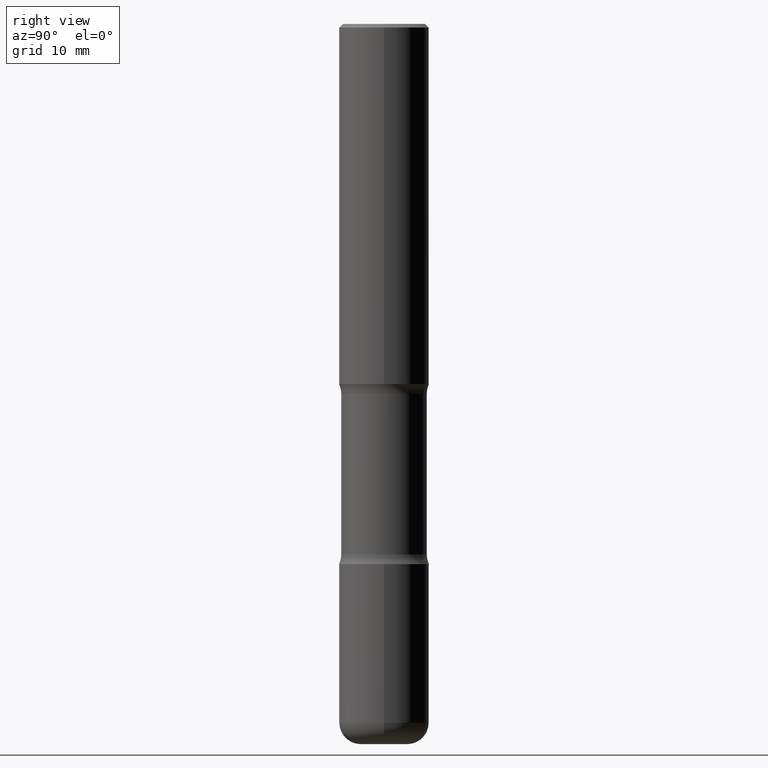
[diagram: clean part render]
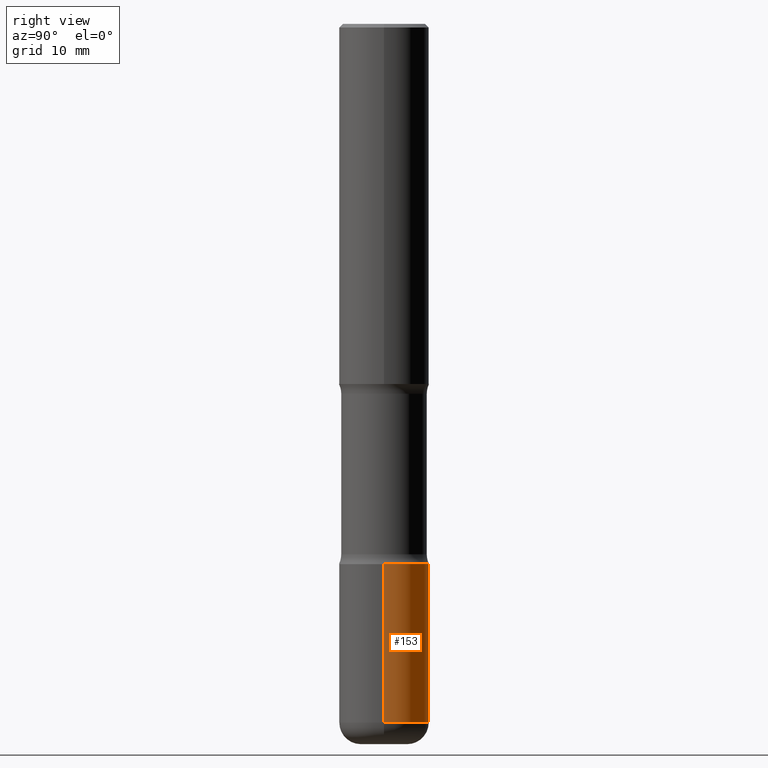
[diagram: same view with one face highlighted and labeled with its STEP entity id]
A machine part, right view. The second image highlights one B-rep face of the part: STEP entity #153.
In plain terms, the highlighted cylindrical surface (partial cylindrical patch) has radius 6.35 mm, axis along (-0, 0, 1).
Its self-contained STEP definition (entity closure, byte-faithful):
#25 = DIRECTION ( 'NONE',  ( 1.000000000000000000, -6.982962677686267499E-15, 0.000000000000000000 ) ) ;
#29 = CARTESIAN_POINT ( 'NONE',  ( -0.2500000000000002776, -1.023433896622016898E-14, -3.000000000000000444 ) ) ;
#48 = VECTOR ( 'NONE', #157, 39.37007874015748143 ) ;
#61 = DIRECTION ( 'NONE',  ( -2.445468806185136597E-29, 3.491481338843145583E-15, 1.000000000000000000 ) ) ;
#77 = CARTESIAN_POINT ( 'NONE',  ( -0.2500000000000003331, -1.177059075531115523E-14, -3.880000000000000782 ) ) ;
#83 = VERTEX_POINT ( 'NONE', #279 ) ;
#85 = AXIS2_PLACEMENT_3D ( 'NONE', #477, #402, #25 ) ;
#93 = EDGE_CURVE ( 'NONE', #83, #210, #463, .T. ) ;
#95 = AXIS2_PLACEMENT_3D ( 'NONE', #371, #61, #149 ) ;
#102 = EDGE_CURVE ( 'NONE', #127, #210, #401, .T. ) ;
#127 = VERTEX_POINT ( 'NONE', #77 ) ;
#140 = EDGE_LOOP ( 'NONE', ( #167, #199, #377, #489 ) ) ;
#142 = FACE_OUTER_BOUND ( 'NONE', #140, .T. ) ;
#149 = DIRECTION ( 'NONE',  ( 1.000000000000000000, -6.982962677686266711E-15, 4.876176775795935793E-29 ) ) ;
#152 = CYLINDRICAL_SURFACE ( 'NONE', #95, 0.2500000000000003331 ) ;
#153 = ADVANCED_FACE ( 'NONE', ( #142 ), #152, .T. ) ;
#157 = DIRECTION ( 'NONE',  ( -2.445468806185136877E-29, 3.491481338843145188E-15, 1.000000000000000000 ) ) ;
#167 = ORIENTED_EDGE ( 'NONE', *, *, #538, .T. ) ;
#190 = EDGE_CURVE ( 'NONE', #234, #83, #453, .T. ) ;
#197 = AXIS2_PLACEMENT_3D ( 'NONE', #274, #445, #319 ) ;
#199 = ORIENTED_EDGE ( 'NONE', *, *, #102, .T. ) ;
#210 = VERTEX_POINT ( 'NONE', #29 ) ;
#234 = VERTEX_POINT ( 'NONE', #376 ) ;
#243 = CARTESIAN_POINT ( 'NONE',  ( 0.2500000000000003331, -1.745740669421569044E-15, 1.219044193948985630E-29 ) ) ;
#274 = CARTESIAN_POINT ( 'NONE',  ( 7.336406418555409790E-29, -1.047444401652943635E-14, -3.000000000000000444 ) ) ;
#279 = CARTESIAN_POINT ( 'NONE',  ( 0.2500000000000002776, -1.222018468595100619E-14, -3.000000000000000444 ) ) ;
#312 = VECTOR ( 'NONE', #440, 39.37007874015748143 ) ;
#319 = DIRECTION ( 'NONE',  ( 1.000000000000000000, -6.982962677686270655E-15, 0.000000000000000000 ) ) ;
#371 = CARTESIAN_POINT ( 'NONE',  ( 0.000000000000000000, 0.000000000000000000, 0.000000000000000000 ) ) ;
#376 = CARTESIAN_POINT ( 'NONE',  ( 0.2500000000000003331, -1.529268826413297711E-14, -3.880000000000000782 ) ) ;
#377 = ORIENTED_EDGE ( 'NONE', *, *, #93, .F. ) ;
#401 = LINE ( 'NONE', #490, #312 ) ;
#402 = DIRECTION ( 'NONE',  ( -2.445468806185136597E-29, 3.491481338843145583E-15, 1.000000000000000000 ) ) ;
#440 = DIRECTION ( 'NONE',  ( -2.445468806185136877E-29, 3.491481338843145188E-15, 1.000000000000000000 ) ) ;
#445 = DIRECTION ( 'NONE',  ( -2.445468806185136597E-29, 3.491481338843145583E-15, 1.000000000000000000 ) ) ;
#453 = LINE ( 'NONE', #243, #48 ) ;
#456 = CIRCLE ( 'NONE', #85, 0.2500000000000003886 ) ;
#463 = CIRCLE ( 'NONE', #197, 0.2500000000000002776 ) ;
#477 = CARTESIAN_POINT ( 'NONE',  ( 9.488418967998331206E-29, -1.354694759471140727E-14, -3.880000000000000782 ) ) ;
#489 = ORIENTED_EDGE ( 'NONE', *, *, #190, .F. ) ;
#490 = CARTESIAN_POINT ( 'NONE',  ( -0.2500000000000003331, 1.776356839400252831E-15, -1.229733772563727987E-29 ) ) ;
#538 = EDGE_CURVE ( 'NONE', #234, #127, #456, .T. ) ;